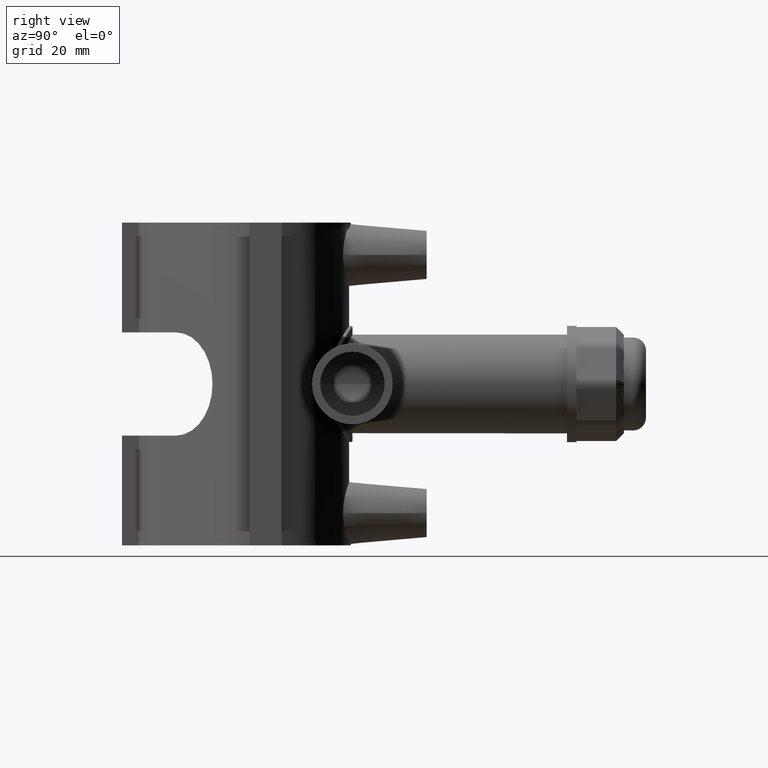
[diagram: clean part render]
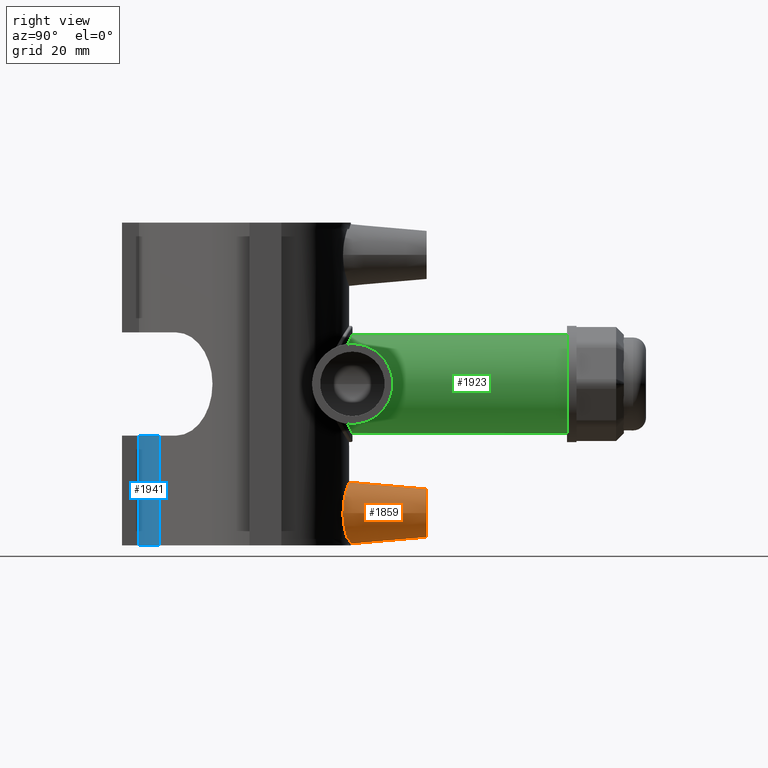
[diagram: same view with three faces highlighted in distinct colors, each labeled with its STEP entity id]
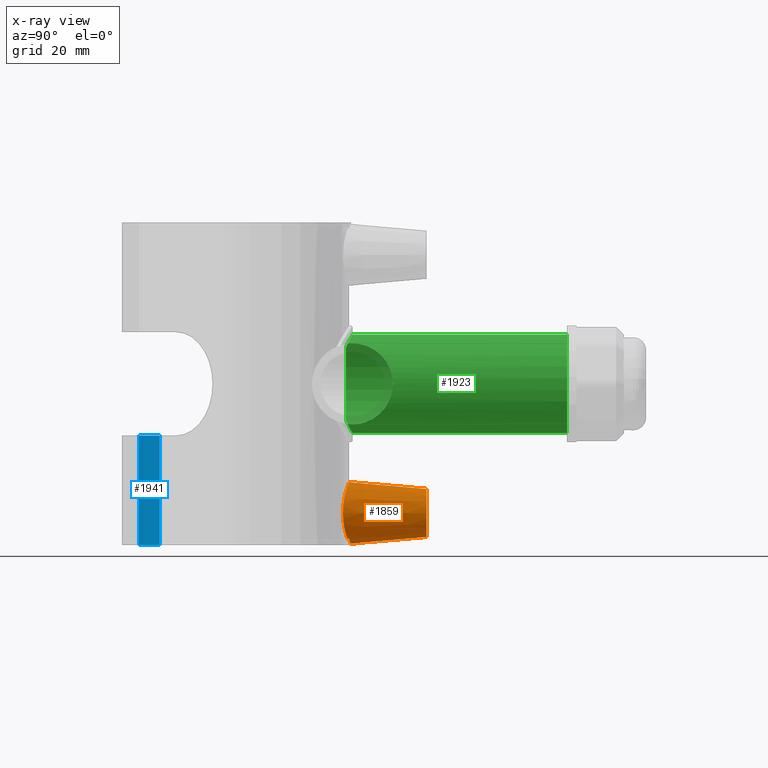
[diagram: x-ray of the same camera — body ghosted, the three highlighted faces saturated]
A machine part, right view with three faces highlighted in distinct colors.
The next image is the same camera in x-ray (body ghosted, the three faces saturated) — at least one of them is partly hidden behind the body in this view.
Their STEP definitions:

[orange] entity #1859 — the highlighted conical surface has half-angle 5 deg.
#29=(
BOUNDED_CURVE()
B_SPLINE_CURVE(2,(#2927,#2928,#2929),.UNSPECIFIED.,.F.,.F.)
B_SPLINE_CURVE_WITH_KNOTS((3,3),(0.133736892367415,0.189943766145764),
 .UNSPECIFIED.)
CURVE()
GEOMETRIC_REPRESENTATION_ITEM()
RATIONAL_B_SPLINE_CURVE((1.00009556013023,1.00009167201305,1.00006763645424))
REPRESENTATION_ITEM('')
);
#30=(
BOUNDED_CURVE()
B_SPLINE_CURVE(2,(#2942,#2943,#2944),.UNSPECIFIED.,.F.,.F.)
B_SPLINE_CURVE_WITH_KNOTS((3,3),(0.0558360570482742,0.112042930826623),
 .UNSPECIFIED.)
CURVE()
GEOMETRIC_REPRESENTATION_ITEM()
RATIONAL_B_SPLINE_CURVE((1.00006763645424,1.00009167201305,1.00009556013023))
REPRESENTATION_ITEM('')
);
#32=CONICAL_SURFACE('',#1995,7.5,5.);
#54=FACE_BOUND('',#360,.T.);
#71=B_SPLINE_CURVE_WITH_KNOTS('',3,(#2931,#2932,#2933,#2934,#2935,#2936,
#2937,#2938,#2939,#2940),.UNSPECIFIED.,.F.,.F.,(4,2,2,2,4),(3.86154772595049,
4.03463958852525,4.40043196614832,4.76622434377139,4.93931620634615),
 .UNSPECIFIED.);
#72=B_SPLINE_CURVE_WITH_KNOTS('',3,(#2946,#2947,#2948,#2949,#2950,#2951,
#2952,#2953,#2954,#2955,#2956,#2957,#2958,#2959,#2960,#2961,#2962,#2963,
#2964,#2965,#2966,#2967,#2968,#2969),.UNSPECIFIED.,.F.,.F.,(4,2,2,2,2,2,
2,2,2,2,2,4),(0.,0.369701649813085,0.739403299626169,1.10719176635003,1.47498023307389,
1.84276869979774,2.2105571665216,2.58025881633469,2.94996046614777,3.31966211596086,
3.68936376577394,3.87630209367673),.UNSPECIFIED.);
#73=B_SPLINE_CURVE_WITH_KNOTS('',3,(#2970,#2971,#2972,#2973,#2974,#2975,
#2976,#2977),.UNSPECIFIED.,.F.,.F.,(4,2,2,4),(4.97357930476659,5.16051763266937,
5.53021928248246,5.89992093229554),.UNSPECIFIED.);
#101=CIRCLE('',#1967,7.5);
#234=FACE_OUTER_BOUND('',#359,.T.);
#359=EDGE_LOOP('',(#1304,#1305,#1306,#1307,#1308));
#360=EDGE_LOOP('',(#1309));
#780=VERTEX_POINT('',#2819);
#801=VERTEX_POINT('',#2925);
#802=VERTEX_POINT('',#2926);
#803=VERTEX_POINT('',#2930);
#804=VERTEX_POINT('',#2941);
#805=VERTEX_POINT('',#2945);
#970=EDGE_CURVE('',#780,#780,#101,.T.);
#996=EDGE_CURVE('',#801,#802,#29,.T.);
#997=EDGE_CURVE('',#802,#803,#71,.T.);
#998=EDGE_CURVE('',#803,#804,#30,.T.);
#999=EDGE_CURVE('',#805,#804,#72,.T.);
#1000=EDGE_CURVE('',#801,#805,#73,.T.);
#1304=ORIENTED_EDGE('',*,*,#996,.T.);
#1305=ORIENTED_EDGE('',*,*,#997,.T.);
#1306=ORIENTED_EDGE('',*,*,#998,.T.);
#1307=ORIENTED_EDGE('',*,*,#999,.F.);
#1308=ORIENTED_EDGE('',*,*,#1000,.F.);
#1309=ORIENTED_EDGE('',*,*,#970,.T.);
#1859=ADVANCED_FACE('',(#234,#54),#32,.T.);
#1967=AXIS2_PLACEMENT_3D('',#2820,#2204,#2205);
#1995=AXIS2_PLACEMENT_3D('',#2924,#2267,#2268);
#2204=DIRECTION('center_axis',(0.,-1.,0.));
#2205=DIRECTION('ref_axis',(1.,0.,0.));
#2267=DIRECTION('center_axis',(0.,-1.,0.));
#2268=DIRECTION('ref_axis',(1.,0.,0.));
#2819=CARTESIAN_POINT('',(-7.5,50.,-40.));
#2820=CARTESIAN_POINT('Origin',(0.,50.,-40.));
#2924=CARTESIAN_POINT('Origin',(0.,50.,-40.));
#2925=CARTESIAN_POINT('',(5.3951674336109,25.4340749460896,-48.));
#2926=CARTESIAN_POINT('',(5.30876387516254,25.9832143145872,-48.));
#2927=CARTESIAN_POINT('Ctrl Pts',(5.3951674336109,25.4340749460896,-48.));
#2928=CARTESIAN_POINT('Ctrl Pts',(5.35185783535779,25.7108609933817,-48.));
#2929=CARTESIAN_POINT('Ctrl Pts',(5.30876387516254,25.9832143145872,-48.));
#2930=CARTESIAN_POINT('',(-5.30876387516254,25.9832143145872,-48.));
#2931=CARTESIAN_POINT('Ctrl Pts',(5.30876387516254,25.9832143145872,-48.));
#2932=CARTESIAN_POINT('Ctrl Pts',(4.80614466395268,26.0859070253168,-48.3227531575944));
#2933=CARTESIAN_POINT('Ctrl Pts',(4.26604609183942,26.1807941840248,-48.6035301130302));
#2934=CARTESIAN_POINT('Ctrl Pts',(2.51473217360753,26.427785365591,-49.3144846289839));
#2935=CARTESIAN_POINT('Ctrl Pts',(1.21930792541024,26.52,-49.5542338195887));
#2936=CARTESIAN_POINT('Ctrl Pts',(-1.21930792541024,26.52,-49.5542338195887));
#2937=CARTESIAN_POINT('Ctrl Pts',(-2.51473217360753,26.427785365591,-49.3144846289839));
#2938=CARTESIAN_POINT('Ctrl Pts',(-4.26604609183942,26.1807941840248,-48.6035301130302));
#2939=CARTESIAN_POINT('Ctrl Pts',(-4.80614466395267,26.0859070253168,-48.3227531575944));
#2940=CARTESIAN_POINT('Ctrl Pts',(-5.30876387516254,25.9832143145872,-48.));
#2941=CARTESIAN_POINT('',(-5.3951674336109,25.4340749460896,-48.));
#2942=CARTESIAN_POINT('Ctrl Pts',(-5.30876387516254,25.9832143145872,-48.));
#2943=CARTESIAN_POINT('Ctrl Pts',(-5.35185783535865,25.7108609933762,-48.));
#2944=CARTESIAN_POINT('Ctrl Pts',(-5.3951674336109,25.4340749460896,-48.));
#2945=CARTESIAN_POINT('',(9.76630249195255,24.096043983104,-40.));
#2946=CARTESIAN_POINT('Ctrl Pts',(9.76630249195255,24.096043983104,-40.));
#2947=CARTESIAN_POINT('Ctrl Pts',(9.76630249195255,24.096043983104,-38.7676611672897));
#2948=CARTESIAN_POINT('Ctrl Pts',(9.5099621601497,24.2044189053943,-37.4659549905574));
#2949=CARTESIAN_POINT('Ctrl Pts',(8.49387395753574,24.5794092044208,-35.0932926872271));
#2950=CARTESIAN_POINT('Ctrl Pts',(7.73484343137408,24.8390807172828,-34.0209372487483));
#2951=CARTESIAN_POINT('Ctrl Pts',(6.00569492756995,25.3126652865951,-32.3389729484772));
#2952=CARTESIAN_POINT('Ctrl Pts',(4.91758131382388,25.5592379122145,-31.6109466468528));
#2953=CARTESIAN_POINT('Ctrl Pts',(2.528128502029,25.9049380292898,-30.6412987795354));
#2954=CARTESIAN_POINT('Ctrl Pts',(1.22596155574619,26.,-30.4002720753778));
#2955=CARTESIAN_POINT('Ctrl Pts',(-1.22596155574619,26.,-30.4002720753778));
#2956=CARTESIAN_POINT('Ctrl Pts',(-2.528128502029,25.9049380292898,-30.6412987795354));
#2957=CARTESIAN_POINT('Ctrl Pts',(-4.91758131382388,25.5592379122145,-31.6109466468528));
#2958=CARTESIAN_POINT('Ctrl Pts',(-6.00569492756996,25.3126652865951,-32.3389729484772));
#2959=CARTESIAN_POINT('Ctrl Pts',(-7.73484343137409,24.8390807172828,-34.0209372487483));
#2960=CARTESIAN_POINT('Ctrl Pts',(-8.49387395753574,24.5794092044208,-35.0932926872271));
#2961=CARTESIAN_POINT('Ctrl Pts',(-9.50996216014971,24.2044189053943,-37.4659549905574));
#2962=CARTESIAN_POINT('Ctrl Pts',(-9.76630249195255,24.096043983104,-38.7676611672897));
#2963=CARTESIAN_POINT('Ctrl Pts',(-9.76630249195255,24.096043983104,-41.2323388327103));
#2964=CARTESIAN_POINT('Ctrl Pts',(-9.50996216014972,24.2044189053942,-42.5340450094426));
#2965=CARTESIAN_POINT('Ctrl Pts',(-8.49387395753575,24.5794092044208,-44.9067073127729));
#2966=CARTESIAN_POINT('Ctrl Pts',(-7.73484343137408,24.8390807172828,-45.9790627512517));
#2967=CARTESIAN_POINT('Ctrl Pts',(-6.42972331783999,25.1965310724773,-47.2485693515817));
#2968=CARTESIAN_POINT('Ctrl Pts',(-5.93451184178679,25.3196672708485,-47.6483411838531));
#2969=CARTESIAN_POINT('Ctrl Pts',(-5.39516743361091,25.4340749460896,-48.));
#2970=CARTESIAN_POINT('Ctrl Pts',(5.3951674336109,25.4340749460896,-48.));
#2971=CARTESIAN_POINT('Ctrl Pts',(5.93451184178679,25.3196672708485,-47.6483411838531));
#2972=CARTESIAN_POINT('Ctrl Pts',(6.42972331783999,25.1965310724773,-47.2485693515817));
#2973=CARTESIAN_POINT('Ctrl Pts',(7.73484343137409,24.8390807172828,-45.9790627512517));
#2974=CARTESIAN_POINT('Ctrl Pts',(8.49387395753574,24.5794092044208,-44.9067073127729));
#2975=CARTESIAN_POINT('Ctrl Pts',(9.5099621601497,24.2044189053942,-42.5340450094426));
#2976=CARTESIAN_POINT('Ctrl Pts',(9.76630249195255,24.096043983104,-41.2323388327103));
#2977=CARTESIAN_POINT('Ctrl Pts',(9.76630249195255,24.096043983104,-40.));

[blue] entity #1941 — the highlighted cylindrical surface (partial cylindrical patch) has radius 23.125 mm, axis along (0, 0, -1).
#167=CIRCLE('',#2124,23.1250457296622);
#174=CIRCLE('',#2144,23.1250457296622);
#208=CYLINDRICAL_SURFACE('',#2143,23.1250457296622);
#316=FACE_OUTER_BOUND('',#454,.T.);
#454=EDGE_LOOP('',(#1704,#1705,#1706,#1707));
#589=LINE('',#3735,#738);
#596=LINE('',#3748,#745);
#738=VECTOR('',#2656,34.);
#745=VECTOR('',#2667,34.);
#916=VERTEX_POINT('',#3687);
#917=VERTEX_POINT('',#3689);
#930=VERTEX_POINT('',#3734);
#934=VERTEX_POINT('',#3746);
#1167=EDGE_CURVE('',#917,#916,#167,.T.);
#1190=EDGE_CURVE('',#917,#930,#589,.T.);
#1197=EDGE_CURVE('',#916,#934,#596,.T.);
#1200=EDGE_CURVE('',#930,#934,#174,.T.);
#1704=ORIENTED_EDGE('',*,*,#1167,.T.);
#1705=ORIENTED_EDGE('',*,*,#1197,.T.);
#1706=ORIENTED_EDGE('',*,*,#1200,.F.);
#1707=ORIENTED_EDGE('',*,*,#1190,.F.);
#1941=ADVANCED_FACE('',(#316),#208,.T.);
#2124=AXIS2_PLACEMENT_3D('',#3690,#2608,#2609);
#2143=AXIS2_PLACEMENT_3D('',#3753,#2672,#2673);
#2144=AXIS2_PLACEMENT_3D('',#3754,#2674,#2675);
#2608=DIRECTION('center_axis',(-6.8691545148979E-16,-6.86915449858513E-16,
-1.));
#2609=DIRECTION('ref_axis',(-0.0453209175537758,-0.998972479316665,0.));
#2656=DIRECTION('',(0.,0.,-1.));
#2667=DIRECTION('',(0.,0.,-1.));
#2672=DIRECTION('center_axis',(0.,0.,-1.));
#2673=DIRECTION('ref_axis',(-0.0453209175537758,-0.998972479316665,0.));
#2674=DIRECTION('center_axis',(0.,0.,-1.));
#2675=DIRECTION('ref_axis',(-0.0453209175537758,-0.998972479316665,0.));
#3687=CARTESIAN_POINT('',(-12.4499249998828,-39.1453518956896,-16.));
#3689=CARTESIAN_POINT('',(-7.76644282218797E-8,-32.7037533402186,-16.));
#3690=CARTESIAN_POINT('Origin',(-16.3518767089415,-16.3518766701093,-16.));
#3734=CARTESIAN_POINT('',(-7.76644282218797E-8,-32.7037533402186,-50.));
#3735=CARTESIAN_POINT('',(-7.76644282218797E-8,-32.7037533402186,50.));
#3746=CARTESIAN_POINT('',(-12.4499249998828,-39.1453518956896,-50.));
#3748=CARTESIAN_POINT('',(-12.4499249998828,-39.1453518956896,50.));
#3753=CARTESIAN_POINT('Origin',(-16.3518767089415,-16.3518766701093,50.));
#3754=CARTESIAN_POINT('Origin',(-16.3518767089415,-16.3518766701093,-50.));

[green] entity #1923 — the highlighted cylindrical surface (bore or boss wall) has radius 15.3 mm, axis along (0, 1, 0).
#63=FACE_BOUND('',#433,.T.);
#79=B_SPLINE_CURVE_WITH_KNOTS('',3,(#3039,#3040,#3041,#3042,#3043,#3044,
#3045,#3046,#3047,#3048,#3049,#3050,#3051,#3052),.UNSPECIFIED.,.F.,.F.,
(4,2,2,2,2,2,4),(1.43771023784819,1.77779332832389,2.07313135553574,2.36846938274759,
2.66380740995944,2.95914543717129,3.49281229705503),.UNSPECIFIED.);
#83=B_SPLINE_CURVE_WITH_KNOTS('',3,(#3087,#3088,#3089,#3090,#3091,#3092,
#3093,#3094,#3095,#3096,#3097,#3098,#3099,#3100),.UNSPECIFIED.,.F.,.F.,
(4,2,2,2,2,2,4),(5.98106523393533,6.51473209381907,6.81007012103092,7.10540814824277,
7.40074617545462,7.69608420266647,8.03616729314217),.UNSPECIFIED.);
#94=B_SPLINE_CURVE_WITH_KNOTS('',3,(#3562,#3563,#3564,#3565,#3566,#3567,
#3568,#3569,#3570,#3571,#3572,#3573,#3574,#3575,#3576,#3577,#3578,#3579,
#3580,#3581,#3582,#3583,#3584,#3585,#3586,#3587,#3588,#3589,#3590,#3591,
#3592),.UNSPECIFIED.,.F.,.F.,(4,2,2,2,2,2,2,2,2,2,2,2,2,3,4),(-4.20822981202646,
-4.05841733611914,-3.80016804619947,-3.5419187562798,-3.02542017644047,
-2.52731442225002,-2.27826154515479,-2.02920866805957,-1.78015579096435,
-1.53110291386912,-1.03299715967867,-0.516498579839336,-0.258249289919668,
0.,0.149812475968005),.UNSPECIFIED.);
#121=CIRCLE('',#2011,15.3);
#162=CIRCLE('',#2112,15.3);
#202=CYLINDRICAL_SURFACE('',#2114,15.3);
#298=FACE_OUTER_BOUND('',#432,.T.);
#432=EDGE_LOOP('',(#1624));
#433=EDGE_LOOP('',(#1625,#1626,#1627,#1628));
#814=VERTEX_POINT('',#3033);
#815=VERTEX_POINT('',#3038);
#820=VERTEX_POINT('',#3084);
#821=VERTEX_POINT('',#3086);
#830=VERTEX_POINT('',#3332);
#1014=EDGE_CURVE('',#814,#815,#79,.T.);
#1020=EDGE_CURVE('',#820,#821,#83,.T.);
#1033=EDGE_CURVE('',#830,#830,#121,.T.);
#1144=EDGE_CURVE('',#814,#821,#94,.T.);
#1151=EDGE_CURVE('',#820,#815,#162,.T.);
#1624=ORIENTED_EDGE('',*,*,#1033,.F.);
#1625=ORIENTED_EDGE('',*,*,#1020,.F.);
#1626=ORIENTED_EDGE('',*,*,#1151,.T.);
#1627=ORIENTED_EDGE('',*,*,#1014,.F.);
#1628=ORIENTED_EDGE('',*,*,#1144,.T.);
#1923=ADVANCED_FACE('',(#298,#63),#202,.T.);
#2011=AXIS2_PLACEMENT_3D('',#3333,#2306,#2307);
#2112=AXIS2_PLACEMENT_3D('',#3609,#2574,#2575);
#2114=AXIS2_PLACEMENT_3D('',#3611,#2578,#2579);
#2306=DIRECTION('center_axis',(0.,1.,3.06161699786838E-16));
#2307=DIRECTION('ref_axis',(1.,0.,0.));
#2574=DIRECTION('center_axis',(0.,1.,3.06161699786838E-16));
#2575=DIRECTION('ref_axis',(1.,0.,0.));
#2578=DIRECTION('center_axis',(0.,1.,3.06161699786838E-16));
#2579=DIRECTION('ref_axis',(0.,0.,1.));
#3033=CARTESIAN_POINT('',(8.94645064434095,25.5171044767316,12.4117291650877));
#3038=CARTESIAN_POINT('',(-10.4239675747769,24.95,11.1995937426319));
#3039=CARTESIAN_POINT('Ctrl Pts',(8.94645064432282,25.5171044765799,12.4117291651363));
#3040=CARTESIAN_POINT('Ctrl Pts',(8.02285141726944,25.8409239329588,13.0774651629196));
#3041=CARTESIAN_POINT('Ctrl Pts',(7.00048794889116,26.1416195784787,13.6550269359768));
#3042=CARTESIAN_POINT('Ctrl Pts',(4.97895268688465,26.5950914078785,14.5030417332201));
#3043=CARTESIAN_POINT('Ctrl Pts',(3.99274416710978,26.7624587627705,14.8048955162952));
#3044=CARTESIAN_POINT('Ctrl Pts',(1.99551992068447,26.9849792525883,15.2034482103225));
#3045=CARTESIAN_POINT('Ctrl Pts',(0.984460090706164,27.04,15.3));
#3046=CARTESIAN_POINT('Ctrl Pts',(-0.984460090706164,27.04,15.3));
#3047=CARTESIAN_POINT('Ctrl Pts',(-1.99551992068447,26.9849792525883,15.2034482103225));
#3048=CARTESIAN_POINT('Ctrl Pts',(-3.99274416710978,26.7624587627705,14.8048955162952));
#3049=CARTESIAN_POINT('Ctrl Pts',(-4.97895268688465,26.5950914078785,14.5030417332201));
#3050=CARTESIAN_POINT('Ctrl Pts',(-7.61635733868207,26.0034674402951,13.3966755900826));
#3051=CARTESIAN_POINT('Ctrl Pts',(-9.16251490521156,25.4770277244355,12.3736846986825));
#3052=CARTESIAN_POINT('Ctrl Pts',(-10.4239675747769,24.95,11.1995937426319));
#3084=CARTESIAN_POINT('',(-10.4239675747769,24.95,-11.1995937426319));
#3086=CARTESIAN_POINT('',(8.94645064434094,25.5171044767316,-12.4117291650877));
#3087=CARTESIAN_POINT('Ctrl Pts',(-10.4239675747769,24.95,-11.1995937426319));
#3088=CARTESIAN_POINT('Ctrl Pts',(-9.16251490521155,25.4770277244355,-12.3736846986825));
#3089=CARTESIAN_POINT('Ctrl Pts',(-7.61635733868206,26.0034674402951,-13.3966755900826));
#3090=CARTESIAN_POINT('Ctrl Pts',(-4.97895268688465,26.5950914078785,-14.5030417332201));
#3091=CARTESIAN_POINT('Ctrl Pts',(-3.99274416710978,26.7624587627705,-14.8048955162952));
#3092=CARTESIAN_POINT('Ctrl Pts',(-1.99551992068447,26.9849792525883,-15.2034482103224));
#3093=CARTESIAN_POINT('Ctrl Pts',(-0.984460090706167,27.04,-15.3));
#3094=CARTESIAN_POINT('Ctrl Pts',(0.984460090706164,27.04,-15.3));
#3095=CARTESIAN_POINT('Ctrl Pts',(1.99551992068447,26.9849792525883,-15.2034482103224));
#3096=CARTESIAN_POINT('Ctrl Pts',(3.99274416710978,26.7624587627705,-14.8048955162952));
#3097=CARTESIAN_POINT('Ctrl Pts',(4.97895268688465,26.5950914078785,-14.5030417332201));
#3098=CARTESIAN_POINT('Ctrl Pts',(7.00048794889116,26.1416195784787,-13.6550269359768));
#3099=CARTESIAN_POINT('Ctrl Pts',(8.02285141726944,25.8409239329588,-13.0774651629196));
#3100=CARTESIAN_POINT('Ctrl Pts',(8.94645064432282,25.5171044765799,-12.4117291651363));
#3332=CARTESIAN_POINT('',(0.,93.5,15.3));
#3333=CARTESIAN_POINT('Origin',(0.,93.5,2.25028849343326E-14));
#3562=CARTESIAN_POINT('Ctrl Pts',(8.94645064439029,25.5171044768723,12.4117291650877));
#3563=CARTESIAN_POINT('Ctrl Pts',(8.86555756015314,26.0051401977394,12.4700373972425));
#3564=CARTESIAN_POINT('Ctrl Pts',(8.82269800004508,26.5006250803089,12.5));
#3565=CARTESIAN_POINT('Ctrl Pts',(8.82269800004508,27.8608309663989,12.5));
#3566=CARTESIAN_POINT('Ctrl Pts',(8.95216697534223,28.7096715831977,12.4108244087012));
#3567=CARTESIAN_POINT('Ctrl Pts',(9.40435554377477,30.3501623068477,12.0717833160725));
#3568=CARTESIAN_POINT('Ctrl Pts',(9.72457325522952,31.1425082192107,11.8219526966076));
#3569=CARTESIAN_POINT('Ctrl Pts',(10.8199081343216,33.4002029705186,10.8610845489844));
#3570=CARTESIAN_POINT('Ctrl Pts',(11.7180818021428,34.7501590702775,9.92751045938618));
#3571=CARTESIAN_POINT('Ctrl Pts',(13.2316693595434,36.8887420619119,7.78892746775181));
#3572=CARTESIAN_POINT('Ctrl Pts',(13.973014742168,37.8426710812499,6.43883312304774));
#3573=CARTESIAN_POINT('Ctrl Pts',(14.7508627295192,38.823178337435,4.14191763204513));
#3574=CARTESIAN_POINT('Ctrl Pts',(14.9564744080612,39.0774961501091,3.33139375726731));
#3575=CARTESIAN_POINT('Ctrl Pts',(15.2311142740217,39.4159827869188,1.67555037677014));
#3576=CARTESIAN_POINT('Ctrl Pts',(15.3,39.5,0.830176256984086));
#3577=CARTESIAN_POINT('Ctrl Pts',(15.3,39.5,-0.83017625698408));
#3578=CARTESIAN_POINT('Ctrl Pts',(15.2311142740217,39.4159827869188,-1.67555037677013));
#3579=CARTESIAN_POINT('Ctrl Pts',(14.9564744080612,39.0774961501091,-3.3313937572673));
#3580=CARTESIAN_POINT('Ctrl Pts',(14.7508627295192,38.823178337435,-4.14191763204512));
#3581=CARTESIAN_POINT('Ctrl Pts',(13.973014742168,37.8426710812499,-6.43883312304774));
#3582=CARTESIAN_POINT('Ctrl Pts',(13.2316693595434,36.8887420619119,-7.7889274677518));
#3583=CARTESIAN_POINT('Ctrl Pts',(11.7180818021428,34.7501590702775,-9.92751045938617));
#3584=CARTESIAN_POINT('Ctrl Pts',(10.8199081343216,33.4002029705186,-10.8610845489844));
#3585=CARTESIAN_POINT('Ctrl Pts',(9.72457325522951,31.1425082192107,-11.8219526966076));
#3586=CARTESIAN_POINT('Ctrl Pts',(9.40435554377476,30.3501623068477,-12.0717833160725));
#3587=CARTESIAN_POINT('Ctrl Pts',(8.95216697534222,28.7096715831977,-12.4108244087012));
#3588=CARTESIAN_POINT('Ctrl Pts',(8.82269800004507,27.8608309663989,-12.5));
#3589=CARTESIAN_POINT('Ctrl Pts',(8.82269800004507,27.,-12.5));
#3590=CARTESIAN_POINT('Ctrl Pts',(8.82269800004507,26.5006250801067,-12.5));
#3591=CARTESIAN_POINT('Ctrl Pts',(8.86555756014029,26.0051401978169,-12.4700373972517));
#3592=CARTESIAN_POINT('Ctrl Pts',(8.94645064439028,25.5171044768723,-12.4117291650877));
#3609=CARTESIAN_POINT('Origin',(0.,24.95,1.51550041394485E-15));
#3611=CARTESIAN_POINT('Origin',(0.,59.225,1.20091926741387E-14));